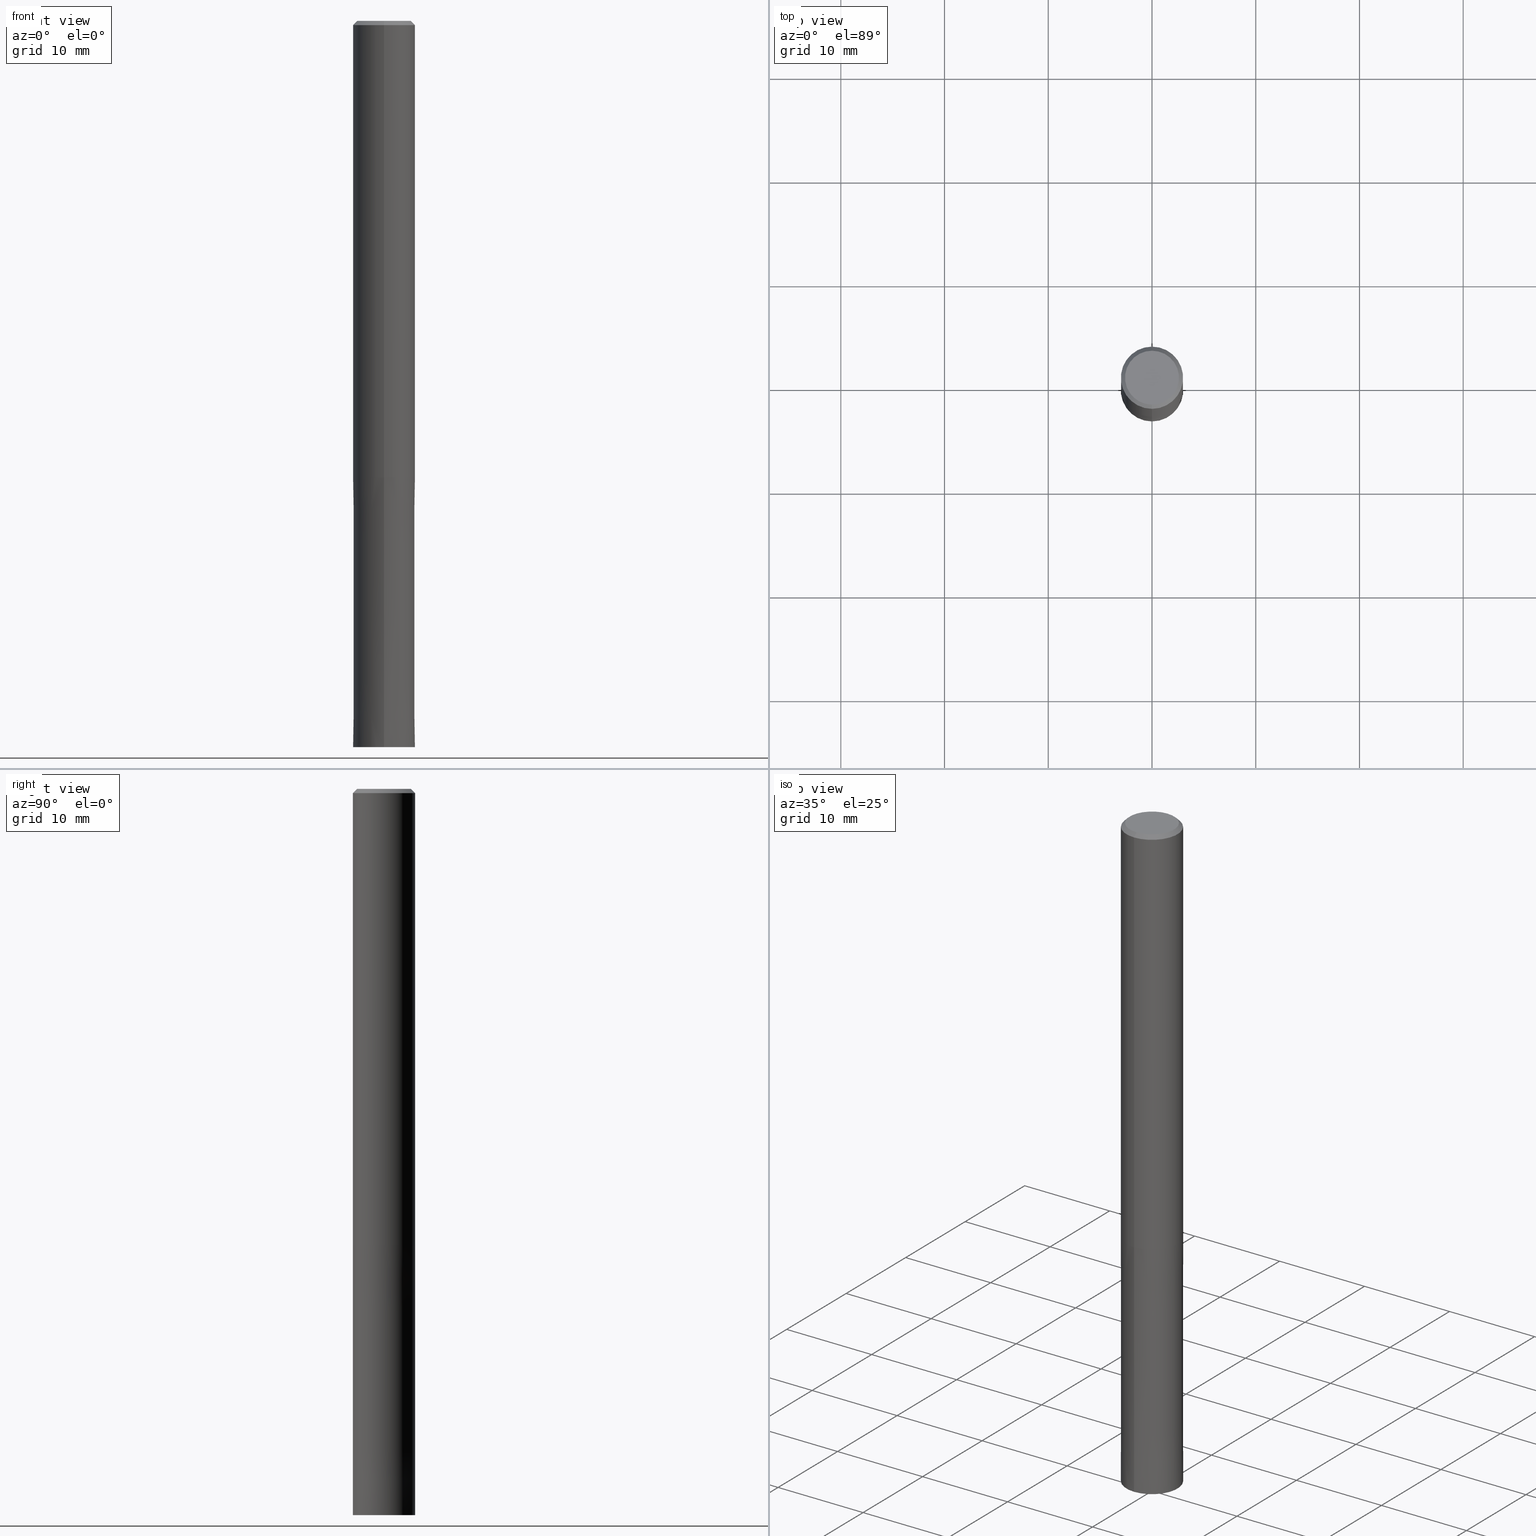
[diagram: canonical four-view strip — front | top / right | iso, engineering-drawing reading convention]
A machine part, canonical four-view strip (front | top / right | iso — engineering-drawing reading convention). The complete STEP part file that produces these views, byte-faithful:
ISO-10303-21;
HEADER;
FILE_DESCRIPTION(('no description'),'unknown implementation level');
FILE_NAME('HMS6060-2600-Huellk.stp','  ',('CIMSOURCE GmbH'),('CADClick - KiM GmbH - www.kimweb.de'),'unknown preprocess','ACIS','unknown authorization');
FILE_SCHEMA(('automotive_design'));
ENDSEC;
DATA;
#1=MECHANICAL_DESIGN_GEOMETRIC_PRESENTATION_REPRESENTATION(' ',(#14,#15,#16,#17,#18,#19,#20,#21,#22,#23,#24,#25,#26,#27,#28,#29,#30,#31,#32,#33,#34,#35,#36,#37,#38,#39,#40,#41,#42,#43,#44,#45,#46,#47,#48,#49,#50,#51,#52,#53,#54,#55,#56,#57,#58,#59,#60,#61,#62,#63,#64,#65,#66,#67,#68,#69,#70,#71,#72,#73,#74,#75,#76),#10);
#2=PRODUCT_DEFINITION_CONTEXT('',#77,'design');
#3=APPLICATION_PROTOCOL_DEFINITION('INTERNATIONAL STANDARD','automotive_design',1994,#77);
#4=PRODUCT_CATEGORY_RELATIONSHIP('NONE','NONE',#78,#79);
#5=SHAPE_DEFINITION_REPRESENTATION(#80,#81);
#6=PRODUCT_DEFINITION_CONTEXT('',#82,'design');
#7=APPLICATION_PROTOCOL_DEFINITION('INTERNATIONAL STANDARD','automotive_design',1994,#82);
#8=PRODUCT_CATEGORY_RELATIONSHIP('NONE','NONE',#83,#84);
#9=SHAPE_DEFINITION_REPRESENTATION(#85,#86);
#10= (GEOMETRIC_REPRESENTATION_CONTEXT(3)GLOBAL_UNCERTAINTY_ASSIGNED_CONTEXT((#89))GLOBAL_UNIT_ASSIGNED_CONTEXT((#91,#92,#93))REPRESENTATION_CONTEXT('NONE','WORKSPACE'));
#14=STYLED_ITEM('',(#95),#96);
#15=STYLED_ITEM('',(#97),#98);
#16=STYLED_ITEM('',(#99),#100);
#17=STYLED_ITEM('',(#101),#102);
#18=STYLED_ITEM('',(#103),#104);
#19=STYLED_ITEM('',(#105),#106);
#20=STYLED_ITEM('',(#107),#108);
#21=STYLED_ITEM('',(#109),#110);
#22=STYLED_ITEM('',(#111),#112);
#23=STYLED_ITEM('',(#113),#114);
#24=STYLED_ITEM('',(#115),#116);
#25=STYLED_ITEM('',(#117),#118);
#26=STYLED_ITEM('',(#119),#120);
#27=STYLED_ITEM('',(#121),#122);
#28=STYLED_ITEM('',(#123),#124);
#29=STYLED_ITEM('',(#125),#126);
#30=STYLED_ITEM('',(#127),#128);
#31=STYLED_ITEM('',(#129),#130);
#32=STYLED_ITEM('',(#131),#132);
#33=STYLED_ITEM('',(#133),#134);
#34=STYLED_ITEM('',(#135),#136);
#35=STYLED_ITEM('',(#137),#138);
#36=STYLED_ITEM('',(#139),#140);
#37=STYLED_ITEM('',(#141),#142);
#38=STYLED_ITEM('',(#143),#144);
#39=STYLED_ITEM('',(#145),#146);
#40=STYLED_ITEM('',(#147),#148);
#41=STYLED_ITEM('',(#149),#150);
#42=STYLED_ITEM('',(#151),#152);
#43=STYLED_ITEM('',(#153),#154);
#44=STYLED_ITEM('',(#155),#156);
#45=STYLED_ITEM('',(#157),#158);
#46=STYLED_ITEM('',(#159),#160);
#47=STYLED_ITEM('',(#161),#162);
#48=STYLED_ITEM('',(#163),#164);
#49=STYLED_ITEM('',(#165),#166);
#50=STYLED_ITEM('',(#167),#168);
#51=STYLED_ITEM('',(#169),#170);
#52=STYLED_ITEM('',(#171),#172);
#53=STYLED_ITEM('',(#173),#174);
#54=STYLED_ITEM('',(#175),#176);
#55=STYLED_ITEM('',(#177),#178);
#56=STYLED_ITEM('',(#179),#180);
#57=STYLED_ITEM('',(#181),#182);
#58=STYLED_ITEM('',(#183),#184);
#59=STYLED_ITEM('',(#185),#186);
#60=STYLED_ITEM('',(#187),#188);
#61=STYLED_ITEM('',(#189),#190);
#62=STYLED_ITEM('',(#191),#192);
#63=STYLED_ITEM('',(#193),#194);
#64=STYLED_ITEM('',(#195),#196);
#65=STYLED_ITEM('',(#197),#198);
#66=STYLED_ITEM('',(#199),#200);
#67=STYLED_ITEM('',(#201),#202);
#68=STYLED_ITEM('',(#203),#204);
#69=STYLED_ITEM('',(#205),#206);
#70=STYLED_ITEM('',(#207),#208);
#71=STYLED_ITEM('',(#209),#210);
#72=STYLED_ITEM('',(#211),#212);
#73=STYLED_ITEM('',(#213),#214);
#74=STYLED_ITEM('',(#215),#216);
#75=STYLED_ITEM('',(#217),#218);
#76=STYLED_ITEM('',(#219),#220);
#77=APPLICATION_CONTEXT(' ');
#78=PRODUCT_CATEGORY('part','NONE');
#79=PRODUCT_RELATED_PRODUCT_CATEGORY('detail',' ',(#221));
#80=PRODUCT_DEFINITION_SHAPE('NONE','NONE',#222);
#81=ADVANCED_BREP_SHAPE_REPRESENTATION('1',(#170,#223),#10);
#82=APPLICATION_CONTEXT(' ');
#83=PRODUCT_CATEGORY('part','NONE');
#84=PRODUCT_RELATED_PRODUCT_CATEGORY('detail',' ',(#224));
#85=PRODUCT_DEFINITION_SHAPE('NONE','NONE',#225);
#86=ADVANCED_BREP_SHAPE_REPRESENTATION('2',(#218,#226),#10);
#89=UNCERTAINTY_MEASURE_WITH_UNIT(LENGTH_MEASURE(1.0E-006),#91,'','');
#91= (CONVERSION_BASED_UNIT('MILLIMETRE',#229)LENGTH_UNIT()NAMED_UNIT(#232));
#92= (NAMED_UNIT(#234)PLANE_ANGLE_UNIT()SI_UNIT($,.RADIAN.));
#93= (NAMED_UNIT(#234)SOLID_ANGLE_UNIT()SI_UNIT($,.STERADIAN.));
#95=PRESENTATION_STYLE_ASSIGNMENT((#240));
#96=VERTEX_POINT('',#241);
#97=PRESENTATION_STYLE_ASSIGNMENT((#242));
#98=ADVANCED_FACE('',(#243),#244,.T.);
#99=PRESENTATION_STYLE_ASSIGNMENT((#245));
#100=VERTEX_POINT('',#246);
#101=PRESENTATION_STYLE_ASSIGNMENT((#247));
#102=ADVANCED_FACE('',(#248),#249,.T.);
#103=PRESENTATION_STYLE_ASSIGNMENT((#250));
#104=VERTEX_POINT('',#251);
#105=PRESENTATION_STYLE_ASSIGNMENT((#252));
#106=VERTEX_POINT('',#253);
#107=PRESENTATION_STYLE_ASSIGNMENT((#254));
#108=ADVANCED_FACE('',(#255,#256),#257,.T.);
#109=PRESENTATION_STYLE_ASSIGNMENT((#258));
#110=VERTEX_POINT('',#259);
#111=PRESENTATION_STYLE_ASSIGNMENT((#260));
#112=EDGE_CURVE('',#104,#206,#261,.T.);
#113=PRESENTATION_STYLE_ASSIGNMENT((#262));
#114=VERTEX_POINT('',#263);
#115=PRESENTATION_STYLE_ASSIGNMENT((#264));
#116=EDGE_CURVE('',#210,#110,#265,.T.);
#117=PRESENTATION_STYLE_ASSIGNMENT((#266));
#118=EDGE_CURVE('',#206,#192,#267,.T.);
#119=PRESENTATION_STYLE_ASSIGNMENT((#268));
#120=EDGE_CURVE('',#106,#186,#269,.T.);
#121=PRESENTATION_STYLE_ASSIGNMENT((#270));
#122=VERTEX_POINT('',#271);
#123=PRESENTATION_STYLE_ASSIGNMENT((#272));
#124=EDGE_CURVE('',#164,#130,#273,.T.);
#125=PRESENTATION_STYLE_ASSIGNMENT((#274));
#126=EDGE_CURVE('',#196,#178,#275,.T.);
#127=PRESENTATION_STYLE_ASSIGNMENT((#276));
#128=ADVANCED_FACE('',(#277),#278,.T.);
#129=PRESENTATION_STYLE_ASSIGNMENT((#279));
#130=VERTEX_POINT('',#280);
#131=PRESENTATION_STYLE_ASSIGNMENT((#281));
#132=EDGE_CURVE('',#184,#198,#282,.T.);
#133=PRESENTATION_STYLE_ASSIGNMENT((#283));
#134=EDGE_CURVE('',#122,#180,#284,.T.);
#135=PRESENTATION_STYLE_ASSIGNMENT((#285));
#136=ADVANCED_FACE('',(#286,#287),#288,.T.);
#137=PRESENTATION_STYLE_ASSIGNMENT((#289));
#138=EDGE_CURVE('',#192,#206,#290,.T.);
#139=PRESENTATION_STYLE_ASSIGNMENT((#291));
#140=EDGE_CURVE('',#100,#198,#292,.T.);
#141=PRESENTATION_STYLE_ASSIGNMENT((#293));
#142=ADVANCED_FACE('',(#294),#295,.F.);
#143=PRESENTATION_STYLE_ASSIGNMENT((#296));
#144=ADVANCED_FACE('',(#297,#298),#299,.T.);
#145=PRESENTATION_STYLE_ASSIGNMENT((#300));
#146=EDGE_CURVE('',#122,#130,#301,.T.);
#147=PRESENTATION_STYLE_ASSIGNMENT((#302));
#148=EDGE_CURVE('',#114,#104,#303,.T.);
#149=PRESENTATION_STYLE_ASSIGNMENT((#304));
#150=EDGE_CURVE('',#110,#210,#305,.T.);
#151=PRESENTATION_STYLE_ASSIGNMENT((#306));
#152=EDGE_CURVE('',#106,#210,#307,.T.);
#153=PRESENTATION_STYLE_ASSIGNMENT((#308));
#154=EDGE_CURVE('',#186,#106,#309,.T.);
#155=PRESENTATION_STYLE_ASSIGNMENT((#310));
#156=EDGE_CURVE('',#184,#96,#311,.T.);
#157=PRESENTATION_STYLE_ASSIGNMENT((#312));
#158=ADVANCED_FACE('',(#313),#314,.T.);
#159=PRESENTATION_STYLE_ASSIGNMENT((#315));
#160=EDGE_CURVE('',#178,#114,#316,.T.);
#161=PRESENTATION_STYLE_ASSIGNMENT((#317));
#162=EDGE_CURVE('',#196,#104,#318,.T.);
#163=PRESENTATION_STYLE_ASSIGNMENT((#319));
#164=VERTEX_POINT('',#320);
#165=PRESENTATION_STYLE_ASSIGNMENT((#321));
#166=EDGE_CURVE('',#96,#100,#322,.T.);
#167=PRESENTATION_STYLE_ASSIGNMENT((#323));
#168=ADVANCED_FACE('',(#324),#325,.T.);
#169=PRESENTATION_STYLE_ASSIGNMENT((#326));
#170=MANIFOLD_SOLID_BREP('1',#327);
#171=PRESENTATION_STYLE_ASSIGNMENT((#328));
#172=ADVANCED_FACE('',(#329),#330,.T.);
#173=PRESENTATION_STYLE_ASSIGNMENT((#331));
#174=EDGE_CURVE('',#164,#180,#332,.T.);
#175=PRESENTATION_STYLE_ASSIGNMENT((#333));
#176=EDGE_CURVE('',#180,#122,#334,.T.);
#177=PRESENTATION_STYLE_ASSIGNMENT((#335));
#178=VERTEX_POINT('',#336);
#179=PRESENTATION_STYLE_ASSIGNMENT((#337));
#180=VERTEX_POINT('',#338);
#181=PRESENTATION_STYLE_ASSIGNMENT((#339));
#182=EDGE_CURVE('',#100,#96,#340,.T.);
#183=PRESENTATION_STYLE_ASSIGNMENT((#341));
#184=VERTEX_POINT('',#342);
#185=PRESENTATION_STYLE_ASSIGNMENT((#343));
#186=VERTEX_POINT('',#344);
#187=PRESENTATION_STYLE_ASSIGNMENT((#345));
#188=ADVANCED_FACE('',(#346),#347,.T.);
#189=PRESENTATION_STYLE_ASSIGNMENT((#348));
#190=EDGE_CURVE('',#114,#178,#349,.T.);
#191=PRESENTATION_STYLE_ASSIGNMENT((#350));
#192=VERTEX_POINT('',#351);
#193=PRESENTATION_STYLE_ASSIGNMENT((#352));
#194=ADVANCED_FACE('',(#353),#354,.T.);
#195=PRESENTATION_STYLE_ASSIGNMENT((#355));
#196=VERTEX_POINT('',#356);
#197=PRESENTATION_STYLE_ASSIGNMENT((#357));
#198=VERTEX_POINT('',#358);
#199=PRESENTATION_STYLE_ASSIGNMENT((#359));
#200=EDGE_CURVE('',#198,#184,#360,.T.);
#201=PRESENTATION_STYLE_ASSIGNMENT((#361));
#202=EDGE_CURVE('',#130,#164,#362,.T.);
#203=PRESENTATION_STYLE_ASSIGNMENT((#363));
#204=EDGE_CURVE('',#104,#196,#364,.T.);
#205=PRESENTATION_STYLE_ASSIGNMENT((#365));
#206=VERTEX_POINT('',#366);
#207=PRESENTATION_STYLE_ASSIGNMENT((#367));
#208=EDGE_CURVE('',#192,#196,#368,.T.);
#209=PRESENTATION_STYLE_ASSIGNMENT((#369));
#210=VERTEX_POINT('',#370);
#211=PRESENTATION_STYLE_ASSIGNMENT((#371));
#212=ADVANCED_FACE('',(#372),#373,.F.);
#213=PRESENTATION_STYLE_ASSIGNMENT((#374));
#214=EDGE_CURVE('',#110,#186,#375,.T.);
#215=PRESENTATION_STYLE_ASSIGNMENT((#376));
#216=ADVANCED_FACE('',(#377),#378,.T.);
#217=PRESENTATION_STYLE_ASSIGNMENT((#379));
#218=MANIFOLD_SOLID_BREP('2',#380);
#219=PRESENTATION_STYLE_ASSIGNMENT((#381));
#220=ADVANCED_FACE('',(#382),#383,.T.);
#221=PRODUCT('1','1','PART-1-DESC',(#384));
#222=PRODUCT_DEFINITION('NONE','NONE',#385,#2);
#223=AXIS2_PLACEMENT_3D('',#386,#387,#388);
#224=PRODUCT('2','2','PART-2-DESC',(#389));
#225=PRODUCT_DEFINITION('NONE','NONE',#390,#6);
#226=AXIS2_PLACEMENT_3D('',#391,#392,#393);
#229=LENGTH_MEASURE_WITH_UNIT(LENGTH_MEASURE(1.0),#394);
#232=DIMENSIONAL_EXPONENTS(1.0,0.0,0.0,0.0,0.0,0.0,0.0);
#234=DIMENSIONAL_EXPONENTS(0.0,0.0,0.0,0.0,0.0,0.0,0.0);
#240=POINT_STYLE(' ',#395,POSITIVE_LENGTH_MEASURE(1.0E-006),#396);
#241=CARTESIAN_POINT('',(1.65321857766021E-016,-1.35,-44.0));
#242=SURFACE_STYLE_USAGE(.BOTH.,#397);
#243=FACE_OUTER_BOUND('',#398,.T.);
#244=CONICAL_SURFACE('',#399,2.99995,3.846153846143E-006);
#245=POINT_STYLE(' ',#400,POSITIVE_LENGTH_MEASURE(1.0E-006),#401);
#246=CARTESIAN_POINT('',(0.0,1.35,-44.0));
#247=SURFACE_STYLE_USAGE(.BOTH.,#402);
#248=FACE_OUTER_BOUND('',#403,.T.);
#249=CYLINDRICAL_SURFACE('',#404,1.35);
#250=POINT_STYLE(' ',#405,POSITIVE_LENGTH_MEASURE(1.0E-006),#406);
#251=CARTESIAN_POINT('',(0.0,3.0,-0.399999999999999));
#252=POINT_STYLE(' ',#407,POSITIVE_LENGTH_MEASURE(1.0E-006),#408);
#253=CARTESIAN_POINT('',(1.65321857766021E-016,-1.35,-69.9));
#254=SURFACE_STYLE_USAGE(.BOTH.,#409);
#255=FACE_OUTER_BOUND('',#410,.T.);
#256=FACE_BOUND('',#411,.T.);
#257=PLANE('',#412);
#258=POINT_STYLE(' ',#413,POSITIVE_LENGTH_MEASURE(1.0E-006),#414);
#259=CARTESIAN_POINT('',(0.0,1.35,-44.0));
#260=CURVE_STYLE('',#415,POSITIVE_LENGTH_MEASURE(1.0E-006),#416);
#261=LINE('',#417,#418);
#262=POINT_STYLE(' ',#419,POSITIVE_LENGTH_MEASURE(1.0E-006),#420);
#263=CARTESIAN_POINT('',(0.0,2.6,0.0));
#264=CURVE_STYLE('',#421,POSITIVE_LENGTH_MEASURE(1.0E-006),#422);
#265=CIRCLE('',#423,1.35);
#266=CURVE_STYLE('',#424,POSITIVE_LENGTH_MEASURE(1.0E-006),#425);
#267=CIRCLE('',#426,3.0);
#268=CURVE_STYLE('',#427,POSITIVE_LENGTH_MEASURE(1.0E-006),#428);
#269=CIRCLE('',#429,1.35);
#270=POINT_STYLE(' ',#430,POSITIVE_LENGTH_MEASURE(1.0E-006),#431);
#271=CARTESIAN_POINT('',(3.67381906146713E-016,-3.0,-70.0));
#272=CURVE_STYLE('',#432,POSITIVE_LENGTH_MEASURE(1.0E-006),#433);
#273=CIRCLE('',#434,2.9999);
#274=CURVE_STYLE('',#435,POSITIVE_LENGTH_MEASURE(1.0E-006),#436);
#275=LINE('',#437,#438);
#276=SURFACE_STYLE_USAGE(.BOTH.,#439);
#277=FACE_OUTER_BOUND('',#440,.T.);
#278=CONICAL_SURFACE('',#441,2.8,0.78539816339745);
#279=POINT_STYLE(' ',#442,POSITIVE_LENGTH_MEASURE(1.0E-006),#443);
#280=CARTESIAN_POINT('',(3.67369660083175E-016,-2.9999,-44.0));
#281=CURVE_STYLE('',#444,POSITIVE_LENGTH_MEASURE(1.0E-006),#445);
#282=CIRCLE('',#446,1.35);
#283=CURVE_STYLE('',#447,POSITIVE_LENGTH_MEASURE(1.0E-006),#448);
#284=CIRCLE('',#449,3.0);
#285=SURFACE_STYLE_USAGE(.BOTH.,#450);
#286=FACE_OUTER_BOUND('',#451,.T.);
#287=FACE_BOUND('',#452,.T.);
#288=PLANE('',#453);
#289=CURVE_STYLE('',#454,POSITIVE_LENGTH_MEASURE(1.0E-006),#455);
#290=CIRCLE('',#456,3.0);
#291=CURVE_STYLE('',#457,POSITIVE_LENGTH_MEASURE(1.0E-006),#458);
#292=LINE('',#459,#460);
#293=SURFACE_STYLE_USAGE(.BOTH.,#461);
#294=FACE_OUTER_BOUND('',#462,.T.);
#295=CYLINDRICAL_SURFACE('',#463,1.35);
#296=SURFACE_STYLE_USAGE(.BOTH.,#464);
#297=FACE_OUTER_BOUND('',#465,.T.);
#298=FACE_BOUND('',#466,.T.);
#299=PLANE('',#467);
#300=CURVE_STYLE('',#468,POSITIVE_LENGTH_MEASURE(1.0E-006),#469);
#301=LINE('',#470,#471);
#302=CURVE_STYLE('',#472,POSITIVE_LENGTH_MEASURE(1.0E-006),#473);
#303=LINE('',#474,#475);
#304=CURVE_STYLE('',#476,POSITIVE_LENGTH_MEASURE(1.0E-006),#477);
#305=CIRCLE('',#478,1.35);
#306=CURVE_STYLE('',#479,POSITIVE_LENGTH_MEASURE(1.0E-006),#480);
#307=LINE('',#481,#482);
#308=CURVE_STYLE('',#483,POSITIVE_LENGTH_MEASURE(1.0E-006),#484);
#309=CIRCLE('',#485,1.35);
#310=CURVE_STYLE('',#486,POSITIVE_LENGTH_MEASURE(1.0E-006),#487);
#311=LINE('',#488,#489);
#312=SURFACE_STYLE_USAGE(.BOTH.,#490);
#313=FACE_OUTER_BOUND('',#491,.T.);
#314=PLANE('',#492);
#315=CURVE_STYLE('',#493,POSITIVE_LENGTH_MEASURE(1.0E-006),#494);
#316=CIRCLE('',#495,2.6);
#317=CURVE_STYLE('',#496,POSITIVE_LENGTH_MEASURE(1.0E-006),#497);
#318=CIRCLE('',#498,3.0);
#319=POINT_STYLE(' ',#499,POSITIVE_LENGTH_MEASURE(1.0E-006),#500);
#320=CARTESIAN_POINT('',(0.0,2.9999,-44.0));
#321=CURVE_STYLE('',#501,POSITIVE_LENGTH_MEASURE(1.0E-006),#502);
#322=CIRCLE('',#503,1.35);
#323=SURFACE_STYLE_USAGE(.BOTH.,#504);
#324=FACE_OUTER_BOUND('',#505,.T.);
#325=CYLINDRICAL_SURFACE('',#506,1.35);
#326=SURFACE_STYLE_USAGE(.BOTH.,#507);
#327=CLOSED_SHELL('',(#102,#188,#216,#136,#158,#128,#172,#168,#194));
#328=SURFACE_STYLE_USAGE(.BOTH.,#508);
#329=FACE_OUTER_BOUND('',#509,.T.);
#330=CYLINDRICAL_SURFACE('',#510,3.0);
#331=CURVE_STYLE('',#511,POSITIVE_LENGTH_MEASURE(1.0E-006),#512);
#332=LINE('',#513,#514);
#333=CURVE_STYLE('',#515,POSITIVE_LENGTH_MEASURE(1.0E-006),#516);
#334=CIRCLE('',#517,3.0);
#335=POINT_STYLE(' ',#518,POSITIVE_LENGTH_MEASURE(1.0E-006),#519);
#336=CARTESIAN_POINT('',(3.18397651993818E-016,-2.6,0.0));
#337=POINT_STYLE(' ',#520,POSITIVE_LENGTH_MEASURE(1.0E-006),#521);
#338=CARTESIAN_POINT('',(0.0,3.0,-70.0));
#339=CURVE_STYLE('',#522,POSITIVE_LENGTH_MEASURE(1.0E-006),#523);
#340=CIRCLE('',#524,1.35);
#341=POINT_STYLE(' ',#525,POSITIVE_LENGTH_MEASURE(1.0E-006),#526);
#342=CARTESIAN_POINT('',(1.65321857766021E-016,-1.35,-70.0));
#343=POINT_STYLE(' ',#527,POSITIVE_LENGTH_MEASURE(1.0E-006),#528);
#344=CARTESIAN_POINT('',(0.0,1.35,-69.9));
#345=SURFACE_STYLE_USAGE(.BOTH.,#529);
#346=FACE_OUTER_BOUND('',#530,.T.);
#347=CYLINDRICAL_SURFACE('',#531,3.0);
#348=CURVE_STYLE('',#532,POSITIVE_LENGTH_MEASURE(1.0E-006),#533);
#349=CIRCLE('',#534,2.6);
#350=POINT_STYLE(' ',#535,POSITIVE_LENGTH_MEASURE(1.0E-006),#536);
#351=CARTESIAN_POINT('',(3.67381906146713E-016,-3.0,-44.0));
#352=SURFACE_STYLE_USAGE(.BOTH.,#537);
#353=FACE_OUTER_BOUND('',#538,.T.);
#354=PLANE('',#539);
#355=POINT_STYLE(' ',#540,POSITIVE_LENGTH_MEASURE(1.0E-006),#541);
#356=CARTESIAN_POINT('',(3.67381906146713E-016,-3.0,-0.399999999999999));
#357=POINT_STYLE(' ',#542,POSITIVE_LENGTH_MEASURE(1.0E-006),#543);
#358=CARTESIAN_POINT('',(0.0,1.35,-70.0));
#359=CURVE_STYLE('',#544,POSITIVE_LENGTH_MEASURE(1.0E-006),#545);
#360=CIRCLE('',#546,1.35);
#361=CURVE_STYLE('',#547,POSITIVE_LENGTH_MEASURE(1.0E-006),#548);
#362=CIRCLE('',#549,2.9999);
#363=CURVE_STYLE('',#550,POSITIVE_LENGTH_MEASURE(1.0E-006),#551);
#364=CIRCLE('',#552,3.0);
#365=POINT_STYLE(' ',#553,POSITIVE_LENGTH_MEASURE(1.0E-006),#554);
#366=CARTESIAN_POINT('',(0.0,3.0,-44.0));
#367=CURVE_STYLE('',#555,POSITIVE_LENGTH_MEASURE(1.0E-006),#556);
#368=LINE('',#557,#558);
#369=POINT_STYLE(' ',#559,POSITIVE_LENGTH_MEASURE(1.0E-006),#560);
#370=CARTESIAN_POINT('',(1.65321857766021E-016,-1.35,-44.0));
#371=SURFACE_STYLE_USAGE(.BOTH.,#561);
#372=FACE_OUTER_BOUND('',#562,.T.);
#373=CYLINDRICAL_SURFACE('',#563,1.35);
#374=CURVE_STYLE('',#564,POSITIVE_LENGTH_MEASURE(1.0E-006),#565);
#375=LINE('',#566,#567);
#376=SURFACE_STYLE_USAGE(.BOTH.,#568);
#377=FACE_OUTER_BOUND('',#569,.T.);
#378=CONICAL_SURFACE('',#570,2.8,0.78539816339745);
#379=SURFACE_STYLE_USAGE(.BOTH.,#571);
#380=CLOSED_SHELL('',(#212,#98,#108,#220,#144,#142));
#381=SURFACE_STYLE_USAGE(.BOTH.,#572);
#382=FACE_OUTER_BOUND('',#573,.T.);
#383=CONICAL_SURFACE('',#574,2.99995,3.846153846143E-006);
#384=PRODUCT_CONTEXT('',#77,'mechanical');
#385=PRODUCT_DEFINITION_FORMATION_WITH_SPECIFIED_SOURCE(' ','NONE',#221,.NOT_KNOWN.);
#386=CARTESIAN_POINT('',(0.0,0.0,0.0));
#387=DIRECTION('',(0.0,0.0,1.0));
#388=DIRECTION('',(1.0,0.0,0.0));
#389=PRODUCT_CONTEXT('',#82,'mechanical');
#390=PRODUCT_DEFINITION_FORMATION_WITH_SPECIFIED_SOURCE(' ','NONE',#224,.NOT_KNOWN.);
#391=CARTESIAN_POINT('',(0.0,0.0,0.0));
#392=DIRECTION('',(0.0,0.0,1.0));
#393=DIRECTION('',(1.0,0.0,0.0));
#394= (NAMED_UNIT(#232)LENGTH_UNIT()SI_UNIT(.MILLI.,.METRE.));
#395=PRE_DEFINED_MARKER('');
#396=COLOUR_RGB('',0.800000011920929,0.800000011920929,0.800000011920929);
#397=SURFACE_SIDE_STYLE('',(#576));
#398=EDGE_LOOP('',(#577,#578,#579,#580));
#399=AXIS2_PLACEMENT_3D('',#581,#582,#583);
#400=PRE_DEFINED_MARKER('');
#401=COLOUR_RGB('',0.800000011920929,0.800000011920929,0.800000011920929);
#402=SURFACE_SIDE_STYLE('',(#584));
#403=EDGE_LOOP('',(#585,#586,#587,#588));
#404=AXIS2_PLACEMENT_3D('',#589,#590,#591);
#405=PRE_DEFINED_MARKER('');
#406=COLOUR_RGB('',0.498039215803146,0.498039215803146,0.498039215803146);
#407=PRE_DEFINED_MARKER('');
#408=COLOUR_RGB('',0.498039215803146,0.498039215803146,0.498039215803146);
#409=SURFACE_SIDE_STYLE('',(#592));
#410=EDGE_LOOP('',(#593,#594));
#411=EDGE_LOOP('',(#595,#596));
#412=AXIS2_PLACEMENT_3D('',#597,#598,#599);
#413=PRE_DEFINED_MARKER('');
#414=COLOUR_RGB('',0.498039215803146,0.498039215803146,0.498039215803146);
#415=DRAUGHTING_PRE_DEFINED_CURVE_FONT('continuous');
#416=COLOUR_RGB('',0.498039215803146,0.498039215803146,0.498039215803146);
#417=CARTESIAN_POINT('',(-3.67381906146713E-016,3.0,-22.2));
#418=VECTOR('',#600,1.0);
#419=PRE_DEFINED_MARKER('');
#420=COLOUR_RGB('',0.498039215803146,0.498039215803146,0.498039215803146);
#421=DRAUGHTING_PRE_DEFINED_CURVE_FONT('continuous');
#422=COLOUR_RGB('',0.498039215803146,0.498039215803146,0.498039215803146);
#423=AXIS2_PLACEMENT_3D('',#601,#602,#603);
#424=DRAUGHTING_PRE_DEFINED_CURVE_FONT('continuous');
#425=COLOUR_RGB('',0.498039215803146,0.498039215803146,0.498039215803146);
#426=AXIS2_PLACEMENT_3D('',#604,#605,#606);
#427=DRAUGHTING_PRE_DEFINED_CURVE_FONT('continuous');
#428=COLOUR_RGB('',0.498039215803146,0.498039215803146,0.498039215803146);
#429=AXIS2_PLACEMENT_3D('',#607,#608,#609);
#430=PRE_DEFINED_MARKER('');
#431=COLOUR_RGB('',0.800000011920929,0.800000011920929,0.800000011920929);
#432=DRAUGHTING_PRE_DEFINED_CURVE_FONT('continuous');
#433=COLOUR_RGB('',0.800000011920929,0.800000011920929,0.800000011920929);
#434=AXIS2_PLACEMENT_3D('',#610,#611,#612);
#435=DRAUGHTING_PRE_DEFINED_CURVE_FONT('continuous');
#436=COLOUR_RGB('',0.498039215803146,0.498039215803146,0.498039215803146);
#437=CARTESIAN_POINT('',(3.42889779070266E-016,-2.8,-0.200000000000003));
#438=VECTOR('',#613,1.0);
#439=SURFACE_SIDE_STYLE('',(#614));
#440=EDGE_LOOP('',(#615,#616,#617,#618));
#441=AXIS2_PLACEMENT_3D('',#619,#620,#621);
#442=PRE_DEFINED_MARKER('');
#443=COLOUR_RGB('',0.800000011920929,0.800000011920929,0.800000011920929);
#444=DRAUGHTING_PRE_DEFINED_CURVE_FONT('continuous');
#445=COLOUR_RGB('',0.800000011920929,0.800000011920929,0.800000011920929);
#446=AXIS2_PLACEMENT_3D('',#622,#623,#624);
#447=DRAUGHTING_PRE_DEFINED_CURVE_FONT('continuous');
#448=COLOUR_RGB('',0.800000011920929,0.800000011920929,0.800000011920929);
#449=AXIS2_PLACEMENT_3D('',#625,#626,#627);
#450=SURFACE_SIDE_STYLE('',(#628));
#451=EDGE_LOOP('',(#629,#630));
#452=EDGE_LOOP('',(#631,#632));
#453=AXIS2_PLACEMENT_3D('',#633,#634,#635);
#454=DRAUGHTING_PRE_DEFINED_CURVE_FONT('continuous');
#455=COLOUR_RGB('',0.498039215803146,0.498039215803146,0.498039215803146);
#456=AXIS2_PLACEMENT_3D('',#636,#637,#638);
#457=DRAUGHTING_PRE_DEFINED_CURVE_FONT('continuous');
#458=COLOUR_RGB('',0.800000011920929,0.800000011920929,0.800000011920929);
#459=CARTESIAN_POINT('',(-1.65321857766021E-016,1.35,-57.0));
#460=VECTOR('',#639,1.0);
#461=SURFACE_SIDE_STYLE('',(#640));
#462=EDGE_LOOP('',(#641,#642,#643,#644));
#463=AXIS2_PLACEMENT_3D('',#645,#646,#647);
#464=SURFACE_SIDE_STYLE('',(#648));
#465=EDGE_LOOP('',(#649,#650));
#466=EDGE_LOOP('',(#651,#652));
#467=AXIS2_PLACEMENT_3D('',#653,#654,#655);
#468=DRAUGHTING_PRE_DEFINED_CURVE_FONT('continuous');
#469=COLOUR_RGB('',0.800000011920929,0.800000011920929,0.800000011920929);
#470=CARTESIAN_POINT('',(3.67375783114944E-016,-2.99995,-57.0));
#471=VECTOR('',#656,1.0);
#472=DRAUGHTING_PRE_DEFINED_CURVE_FONT('continuous');
#473=COLOUR_RGB('',0.498039215803146,0.498039215803146,0.498039215803146);
#474=CARTESIAN_POINT('',(-3.42889779070266E-016,2.8,-0.200000000000003));
#475=VECTOR('',#657,1.0);
#476=DRAUGHTING_PRE_DEFINED_CURVE_FONT('continuous');
#477=COLOUR_RGB('',0.498039215803146,0.498039215803146,0.498039215803146);
#478=AXIS2_PLACEMENT_3D('',#658,#659,#660);
#479=DRAUGHTING_PRE_DEFINED_CURVE_FONT('continuous');
#480=COLOUR_RGB('',0.498039215803146,0.498039215803146,0.498039215803146);
#481=CARTESIAN_POINT('',(1.65321857766021E-016,-1.35,-56.95));
#482=VECTOR('',#661,1.0);
#483=DRAUGHTING_PRE_DEFINED_CURVE_FONT('continuous');
#484=COLOUR_RGB('',0.498039215803146,0.498039215803146,0.498039215803146);
#485=AXIS2_PLACEMENT_3D('',#662,#663,#664);
#486=DRAUGHTING_PRE_DEFINED_CURVE_FONT('continuous');
#487=COLOUR_RGB('',0.800000011920929,0.800000011920929,0.800000011920929);
#488=CARTESIAN_POINT('',(1.65321857766021E-016,-1.35,-57.0));
#489=VECTOR('',#665,1.0);
#490=SURFACE_SIDE_STYLE('',(#666));
#491=EDGE_LOOP('',(#667,#668));
#492=AXIS2_PLACEMENT_3D('',#669,#670,#671);
#493=DRAUGHTING_PRE_DEFINED_CURVE_FONT('continuous');
#494=COLOUR_RGB('',0.498039215803146,0.498039215803146,0.498039215803146);
#495=AXIS2_PLACEMENT_3D('',#672,#673,#674);
#496=DRAUGHTING_PRE_DEFINED_CURVE_FONT('continuous');
#497=COLOUR_RGB('',0.498039215803146,0.498039215803146,0.498039215803146);
#498=AXIS2_PLACEMENT_3D('',#675,#676,#677);
#499=PRE_DEFINED_MARKER('');
#500=COLOUR_RGB('',0.800000011920929,0.800000011920929,0.800000011920929);
#501=DRAUGHTING_PRE_DEFINED_CURVE_FONT('continuous');
#502=COLOUR_RGB('',0.800000011920929,0.800000011920929,0.800000011920929);
#503=AXIS2_PLACEMENT_3D('',#678,#679,#680);
#504=SURFACE_SIDE_STYLE('',(#681));
#505=EDGE_LOOP('',(#682,#683,#684,#685));
#506=AXIS2_PLACEMENT_3D('',#686,#687,#688);
#507=SURFACE_SIDE_STYLE('',(#689));
#508=SURFACE_SIDE_STYLE('',(#690));
#509=EDGE_LOOP('',(#691,#692,#693,#694));
#510=AXIS2_PLACEMENT_3D('',#695,#696,#697);
#511=DRAUGHTING_PRE_DEFINED_CURVE_FONT('continuous');
#512=COLOUR_RGB('',0.800000011920929,0.800000011920929,0.800000011920929);
#513=CARTESIAN_POINT('',(-3.67375783114944E-016,2.99995,-57.0));
#514=VECTOR('',#698,1.0);
#515=DRAUGHTING_PRE_DEFINED_CURVE_FONT('continuous');
#516=COLOUR_RGB('',0.800000011920929,0.800000011920929,0.800000011920929);
#517=AXIS2_PLACEMENT_3D('',#699,#700,#701);
#518=PRE_DEFINED_MARKER('');
#519=COLOUR_RGB('',0.498039215803146,0.498039215803146,0.498039215803146);
#520=PRE_DEFINED_MARKER('');
#521=COLOUR_RGB('',0.800000011920929,0.800000011920929,0.800000011920929);
#522=DRAUGHTING_PRE_DEFINED_CURVE_FONT('continuous');
#523=COLOUR_RGB('',0.800000011920929,0.800000011920929,0.800000011920929);
#524=AXIS2_PLACEMENT_3D('',#702,#703,#704);
#525=PRE_DEFINED_MARKER('');
#526=COLOUR_RGB('',0.800000011920929,0.800000011920929,0.800000011920929);
#527=PRE_DEFINED_MARKER('');
#528=COLOUR_RGB('',0.498039215803146,0.498039215803146,0.498039215803146);
#529=SURFACE_SIDE_STYLE('',(#705));
#530=EDGE_LOOP('',(#706,#707,#708,#709));
#531=AXIS2_PLACEMENT_3D('',#710,#711,#712);
#532=DRAUGHTING_PRE_DEFINED_CURVE_FONT('continuous');
#533=COLOUR_RGB('',0.498039215803146,0.498039215803146,0.498039215803146);
#534=AXIS2_PLACEMENT_3D('',#713,#714,#715);
#535=PRE_DEFINED_MARKER('');
#536=COLOUR_RGB('',0.498039215803146,0.498039215803146,0.498039215803146);
#537=SURFACE_SIDE_STYLE('',(#716));
#538=EDGE_LOOP('',(#717,#718));
#539=AXIS2_PLACEMENT_3D('',#719,#720,#721);
#540=PRE_DEFINED_MARKER('');
#541=COLOUR_RGB('',0.498039215803146,0.498039215803146,0.498039215803146);
#542=PRE_DEFINED_MARKER('');
#543=COLOUR_RGB('',0.800000011920929,0.800000011920929,0.800000011920929);
#544=DRAUGHTING_PRE_DEFINED_CURVE_FONT('continuous');
#545=COLOUR_RGB('',0.800000011920929,0.800000011920929,0.800000011920929);
#546=AXIS2_PLACEMENT_3D('',#722,#723,#724);
#547=DRAUGHTING_PRE_DEFINED_CURVE_FONT('continuous');
#548=COLOUR_RGB('',0.800000011920929,0.800000011920929,0.800000011920929);
#549=AXIS2_PLACEMENT_3D('',#725,#726,#727);
#550=DRAUGHTING_PRE_DEFINED_CURVE_FONT('continuous');
#551=COLOUR_RGB('',0.498039215803146,0.498039215803146,0.498039215803146);
#552=AXIS2_PLACEMENT_3D('',#728,#729,#730);
#553=PRE_DEFINED_MARKER('');
#554=COLOUR_RGB('',0.498039215803146,0.498039215803146,0.498039215803146);
#555=DRAUGHTING_PRE_DEFINED_CURVE_FONT('continuous');
#556=COLOUR_RGB('',0.498039215803146,0.498039215803146,0.498039215803146);
#557=CARTESIAN_POINT('',(3.67381906146713E-016,-3.0,-22.2));
#558=VECTOR('',#731,1.0);
#559=PRE_DEFINED_MARKER('');
#560=COLOUR_RGB('',0.498039215803146,0.498039215803146,0.498039215803146);
#561=SURFACE_SIDE_STYLE('',(#732));
#562=EDGE_LOOP('',(#733,#734,#735,#736));
#563=AXIS2_PLACEMENT_3D('',#737,#738,#739);
#564=DRAUGHTING_PRE_DEFINED_CURVE_FONT('continuous');
#565=COLOUR_RGB('',0.498039215803146,0.498039215803146,0.498039215803146);
#566=CARTESIAN_POINT('',(-1.65321857766021E-016,1.35,-56.95));
#567=VECTOR('',#740,1.0);
#568=SURFACE_SIDE_STYLE('',(#741));
#569=EDGE_LOOP('',(#742,#743,#744,#745));
#570=AXIS2_PLACEMENT_3D('',#746,#747,#748);
#571=SURFACE_SIDE_STYLE('',(#749));
#572=SURFACE_SIDE_STYLE('',(#750));
#573=EDGE_LOOP('',(#751,#752,#753,#754));
#574=AXIS2_PLACEMENT_3D('',#755,#756,#757);
#576=SURFACE_STYLE_FILL_AREA(#758);
#577=ORIENTED_EDGE('',*,*,#174,.F.);
#578=ORIENTED_EDGE('',*,*,#124,.T.);
#579=ORIENTED_EDGE('',*,*,#146,.F.);
#580=ORIENTED_EDGE('',*,*,#176,.F.);
#581=CARTESIAN_POINT('',(0.0,0.0,-57.0));
#582=DIRECTION('',(0.0,-0.0,-1.0));
#583=DIRECTION('',(0.0,1.0,0.0));
#584=SURFACE_STYLE_FILL_AREA(#759);
#585=ORIENTED_EDGE('',*,*,#214,.F.);
#586=ORIENTED_EDGE('',*,*,#150,.T.);
#587=ORIENTED_EDGE('',*,*,#152,.F.);
#588=ORIENTED_EDGE('',*,*,#154,.F.);
#589=CARTESIAN_POINT('',(0.0,0.0,-56.95));
#590=DIRECTION('',(-0.0,-0.0,1.0));
#591=DIRECTION('',(0.0,1.0,0.0));
#592=SURFACE_STYLE_FILL_AREA(#760);
#593=ORIENTED_EDGE('',*,*,#124,.F.);
#594=ORIENTED_EDGE('',*,*,#202,.F.);
#595=ORIENTED_EDGE('',*,*,#182,.T.);
#596=ORIENTED_EDGE('',*,*,#166,.T.);
#597=CARTESIAN_POINT('',(0.0,2.17495,-44.0));
#598=DIRECTION('',(-0.0,0.0,1.0));
#599=DIRECTION('',(0.0,-1.0,0.0));
#600=DIRECTION('',(0.0,0.0,-1.0));
#601=CARTESIAN_POINT('',(0.0,0.0,-44.0));
#602=DIRECTION('',(0.0,0.0,-1.0));
#603=DIRECTION('',(0.0,1.0,0.0));
#604=CARTESIAN_POINT('',(0.0,0.0,-44.0));
#605=DIRECTION('',(0.0,0.0,-1.0));
#606=DIRECTION('',(0.0,1.0,0.0));
#607=CARTESIAN_POINT('',(0.0,0.0,-69.9));
#608=DIRECTION('',(0.0,0.0,-1.0));
#609=DIRECTION('',(0.0,1.0,0.0));
#610=CARTESIAN_POINT('',(0.0,0.0,-44.0));
#611=DIRECTION('',(0.0,0.0,-1.0));
#612=DIRECTION('',(0.0,1.0,0.0));
#613=DIRECTION('',(-8.65927457071937E-017,0.707106781186549,0.707106781186546));
#614=SURFACE_STYLE_FILL_AREA(#761);
#615=ORIENTED_EDGE('',*,*,#148,.T.);
#616=ORIENTED_EDGE('',*,*,#162,.F.);
#617=ORIENTED_EDGE('',*,*,#126,.T.);
#618=ORIENTED_EDGE('',*,*,#160,.T.);
#619=CARTESIAN_POINT('',(0.0,0.0,-0.200000000000003));
#620=DIRECTION('',(0.0,-0.0,-1.0));
#621=DIRECTION('',(0.0,1.0,0.0));
#622=CARTESIAN_POINT('',(0.0,0.0,-70.0));
#623=DIRECTION('',(0.0,0.0,-1.0));
#624=DIRECTION('',(0.0,1.0,0.0));
#625=CARTESIAN_POINT('',(0.0,0.0,-70.0));
#626=DIRECTION('',(0.0,0.0,-1.0));
#627=DIRECTION('',(0.0,1.0,0.0));
#628=SURFACE_STYLE_FILL_AREA(#762);
#629=ORIENTED_EDGE('',*,*,#118,.T.);
#630=ORIENTED_EDGE('',*,*,#138,.T.);
#631=ORIENTED_EDGE('',*,*,#150,.F.);
#632=ORIENTED_EDGE('',*,*,#116,.F.);
#633=CARTESIAN_POINT('',(0.0,1.5,-44.0));
#634=DIRECTION('',(0.0,0.0,-1.0));
#635=DIRECTION('',(0.0,1.0,0.0));
#636=CARTESIAN_POINT('',(0.0,0.0,-44.0));
#637=DIRECTION('',(0.0,0.0,-1.0));
#638=DIRECTION('',(0.0,1.0,0.0));
#639=DIRECTION('',(0.0,-0.0,-1.0));
#640=SURFACE_STYLE_FILL_AREA(#763);
#641=ORIENTED_EDGE('',*,*,#140,.T.);
#642=ORIENTED_EDGE('',*,*,#200,.T.);
#643=ORIENTED_EDGE('',*,*,#156,.T.);
#644=ORIENTED_EDGE('',*,*,#182,.F.);
#645=CARTESIAN_POINT('',(0.0,0.0,-57.0));
#646=DIRECTION('',(-0.0,-0.0,1.0));
#647=DIRECTION('',(0.0,1.0,0.0));
#648=SURFACE_STYLE_FILL_AREA(#764);
#649=ORIENTED_EDGE('',*,*,#176,.T.);
#650=ORIENTED_EDGE('',*,*,#134,.T.);
#651=ORIENTED_EDGE('',*,*,#200,.F.);
#652=ORIENTED_EDGE('',*,*,#132,.F.);
#653=CARTESIAN_POINT('',(0.0,2.1725,-70.0));
#654=DIRECTION('',(0.0,0.0,-1.0));
#655=DIRECTION('',(0.0,1.0,0.0));
#656=DIRECTION('',(-4.71002443775348E-022,3.84615384613351E-006,0.999999999992604));
#657=DIRECTION('',(-8.65927457071937E-017,0.707106781186549,-0.707106781186546));
#658=CARTESIAN_POINT('',(0.0,0.0,-44.0));
#659=DIRECTION('',(0.0,0.0,-1.0));
#660=DIRECTION('',(0.0,1.0,0.0));
#661=DIRECTION('',(-0.0,-0.0,1.0));
#662=CARTESIAN_POINT('',(0.0,0.0,-69.9));
#663=DIRECTION('',(0.0,0.0,-1.0));
#664=DIRECTION('',(0.0,1.0,0.0));
#665=DIRECTION('',(0.0,-0.0,1.0));
#666=SURFACE_STYLE_FILL_AREA(#765);
#667=ORIENTED_EDGE('',*,*,#190,.F.);
#668=ORIENTED_EDGE('',*,*,#160,.F.);
#669=CARTESIAN_POINT('',(0.0,1.3,0.0));
#670=DIRECTION('',(-0.0,0.0,1.0));
#671=DIRECTION('',(0.0,-1.0,0.0));
#672=CARTESIAN_POINT('',(0.0,0.0,0.0));
#673=DIRECTION('',(0.0,0.0,-1.0));
#674=DIRECTION('',(0.0,1.0,0.0));
#675=CARTESIAN_POINT('',(0.0,0.0,-0.399999999999999));
#676=DIRECTION('',(0.0,0.0,-1.0));
#677=DIRECTION('',(0.0,1.0,0.0));
#678=CARTESIAN_POINT('',(0.0,0.0,-44.0));
#679=DIRECTION('',(0.0,0.0,-1.0));
#680=DIRECTION('',(0.0,1.0,0.0));
#681=SURFACE_STYLE_FILL_AREA(#766);
#682=ORIENTED_EDGE('',*,*,#214,.T.);
#683=ORIENTED_EDGE('',*,*,#120,.F.);
#684=ORIENTED_EDGE('',*,*,#152,.T.);
#685=ORIENTED_EDGE('',*,*,#116,.T.);
#686=CARTESIAN_POINT('',(0.0,0.0,-56.95));
#687=DIRECTION('',(-0.0,-0.0,1.0));
#688=DIRECTION('',(0.0,1.0,0.0));
#689=SURFACE_STYLE_FILL_AREA(#767);
#690=SURFACE_STYLE_FILL_AREA(#768);
#691=ORIENTED_EDGE('',*,*,#112,.T.);
#692=ORIENTED_EDGE('',*,*,#138,.F.);
#693=ORIENTED_EDGE('',*,*,#208,.T.);
#694=ORIENTED_EDGE('',*,*,#162,.T.);
#695=CARTESIAN_POINT('',(0.0,0.0,-22.2));
#696=DIRECTION('',(-0.0,-0.0,1.0));
#697=DIRECTION('',(0.0,1.0,0.0));
#698=DIRECTION('',(-4.71002443775348E-022,3.84615384613351E-006,-0.999999999992604));
#699=CARTESIAN_POINT('',(0.0,0.0,-70.0));
#700=DIRECTION('',(0.0,0.0,-1.0));
#701=DIRECTION('',(0.0,1.0,0.0));
#702=CARTESIAN_POINT('',(0.0,0.0,-44.0));
#703=DIRECTION('',(0.0,0.0,-1.0));
#704=DIRECTION('',(0.0,1.0,0.0));
#705=SURFACE_STYLE_FILL_AREA(#769);
#706=ORIENTED_EDGE('',*,*,#112,.F.);
#707=ORIENTED_EDGE('',*,*,#204,.T.);
#708=ORIENTED_EDGE('',*,*,#208,.F.);
#709=ORIENTED_EDGE('',*,*,#118,.F.);
#710=CARTESIAN_POINT('',(0.0,0.0,-22.2));
#711=DIRECTION('',(-0.0,-0.0,1.0));
#712=DIRECTION('',(0.0,1.0,0.0));
#713=CARTESIAN_POINT('',(0.0,0.0,0.0));
#714=DIRECTION('',(0.0,0.0,-1.0));
#715=DIRECTION('',(0.0,1.0,0.0));
#716=SURFACE_STYLE_FILL_AREA(#770);
#717=ORIENTED_EDGE('',*,*,#154,.T.);
#718=ORIENTED_EDGE('',*,*,#120,.T.);
#719=CARTESIAN_POINT('',(0.0,0.675,-69.9));
#720=DIRECTION('',(0.0,0.0,-1.0));
#721=DIRECTION('',(0.0,1.0,0.0));
#722=CARTESIAN_POINT('',(0.0,0.0,-70.0));
#723=DIRECTION('',(0.0,0.0,-1.0));
#724=DIRECTION('',(0.0,1.0,0.0));
#725=CARTESIAN_POINT('',(0.0,0.0,-44.0));
#726=DIRECTION('',(0.0,0.0,-1.0));
#727=DIRECTION('',(0.0,1.0,0.0));
#728=CARTESIAN_POINT('',(0.0,0.0,-0.399999999999999));
#729=DIRECTION('',(0.0,0.0,-1.0));
#730=DIRECTION('',(0.0,1.0,0.0));
#731=DIRECTION('',(-0.0,-0.0,1.0));
#732=SURFACE_STYLE_FILL_AREA(#771);
#733=ORIENTED_EDGE('',*,*,#140,.F.);
#734=ORIENTED_EDGE('',*,*,#166,.F.);
#735=ORIENTED_EDGE('',*,*,#156,.F.);
#736=ORIENTED_EDGE('',*,*,#132,.T.);
#737=CARTESIAN_POINT('',(0.0,0.0,-57.0));
#738=DIRECTION('',(-0.0,-0.0,1.0));
#739=DIRECTION('',(0.0,1.0,0.0));
#740=DIRECTION('',(0.0,0.0,-1.0));
#741=SURFACE_STYLE_FILL_AREA(#772);
#742=ORIENTED_EDGE('',*,*,#148,.F.);
#743=ORIENTED_EDGE('',*,*,#190,.T.);
#744=ORIENTED_EDGE('',*,*,#126,.F.);
#745=ORIENTED_EDGE('',*,*,#204,.F.);
#746=CARTESIAN_POINT('',(0.0,0.0,-0.200000000000003));
#747=DIRECTION('',(0.0,-0.0,-1.0));
#748=DIRECTION('',(0.0,1.0,0.0));
#749=SURFACE_STYLE_FILL_AREA(#773);
#750=SURFACE_STYLE_FILL_AREA(#774);
#751=ORIENTED_EDGE('',*,*,#174,.T.);
#752=ORIENTED_EDGE('',*,*,#134,.F.);
#753=ORIENTED_EDGE('',*,*,#146,.T.);
#754=ORIENTED_EDGE('',*,*,#202,.T.);
#755=CARTESIAN_POINT('',(0.0,0.0,-57.0));
#756=DIRECTION('',(0.0,-0.0,-1.0));
#757=DIRECTION('',(0.0,1.0,0.0));
#758=FILL_AREA_STYLE('',(#775));
#759=FILL_AREA_STYLE('',(#776));
#760=FILL_AREA_STYLE('',(#777));
#761=FILL_AREA_STYLE('',(#778));
#762=FILL_AREA_STYLE('',(#779));
#763=FILL_AREA_STYLE('',(#780));
#764=FILL_AREA_STYLE('',(#781));
#765=FILL_AREA_STYLE('',(#782));
#766=FILL_AREA_STYLE('',(#783));
#767=FILL_AREA_STYLE('',(#784));
#768=FILL_AREA_STYLE('',(#785));
#769=FILL_AREA_STYLE('',(#786));
#770=FILL_AREA_STYLE('',(#787));
#771=FILL_AREA_STYLE('',(#788));
#772=FILL_AREA_STYLE('',(#789));
#773=FILL_AREA_STYLE('',(#790));
#774=FILL_AREA_STYLE('',(#791));
#775=FILL_AREA_STYLE_COLOUR('',#792);
#776=FILL_AREA_STYLE_COLOUR('',#793);
#777=FILL_AREA_STYLE_COLOUR('',#794);
#778=FILL_AREA_STYLE_COLOUR('',#795);
#779=FILL_AREA_STYLE_COLOUR('',#796);
#780=FILL_AREA_STYLE_COLOUR('',#797);
#781=FILL_AREA_STYLE_COLOUR('',#798);
#782=FILL_AREA_STYLE_COLOUR('',#799);
#783=FILL_AREA_STYLE_COLOUR('',#800);
#784=FILL_AREA_STYLE_COLOUR('',#801);
#785=FILL_AREA_STYLE_COLOUR('',#802);
#786=FILL_AREA_STYLE_COLOUR('',#803);
#787=FILL_AREA_STYLE_COLOUR('',#804);
#788=FILL_AREA_STYLE_COLOUR('',#805);
#789=FILL_AREA_STYLE_COLOUR('',#806);
#790=FILL_AREA_STYLE_COLOUR('',#807);
#791=FILL_AREA_STYLE_COLOUR('',#808);
#792=COLOUR_RGB('',0.800000011920929,0.800000011920929,0.800000011920929);
#793=COLOUR_RGB('',0.498039215803146,0.498039215803146,0.498039215803146);
#794=COLOUR_RGB('',0.800000011920929,0.800000011920929,0.800000011920929);
#795=COLOUR_RGB('',0.498039215803146,0.498039215803146,0.498039215803146);
#796=COLOUR_RGB('',0.498039215803146,0.498039215803146,0.498039215803146);
#797=COLOUR_RGB('',0.800000011920929,0.800000011920929,0.800000011920929);
#798=COLOUR_RGB('',0.800000011920929,0.800000011920929,0.800000011920929);
#799=COLOUR_RGB('',0.498039215803146,0.498039215803146,0.498039215803146);
#800=COLOUR_RGB('',0.498039215803146,0.498039215803146,0.498039215803146);
#801=COLOUR_RGB('',0.498039215803146,0.498039215803146,0.498039215803146);
#802=COLOUR_RGB('',0.498039215803146,0.498039215803146,0.498039215803146);
#803=COLOUR_RGB('',0.498039215803146,0.498039215803146,0.498039215803146);
#804=COLOUR_RGB('',0.498039215803146,0.498039215803146,0.498039215803146);
#805=COLOUR_RGB('',0.800000011920929,0.800000011920929,0.800000011920929);
#806=COLOUR_RGB('',0.498039215803146,0.498039215803146,0.498039215803146);
#807=COLOUR_RGB('',0.800000011920929,0.800000011920929,0.800000011920929);
#808=COLOUR_RGB('',0.800000011920929,0.800000011920929,0.800000011920929);
#809=AXIS2_PLACEMENT_3D('PCS',#810,#811,#812);
#810=CARTESIAN_POINT('',(0.0,0.0,0.0));
#811=DIRECTION('',(0.0,0.0,1.0));
#812=DIRECTION('',(1.0,0.0,0.0));
#813=AXIS2_PLACEMENT_3D('CIP',#814,#815,#816);
#814=CARTESIAN_POINT('',(0.0,0.0,-70.0));
#815=DIRECTION('',(0.0,0.0,1.0));
#816=DIRECTION('',(1.0,0.0,0.0));
#817=AXIS2_PLACEMENT_3D('CRP',#818,#819,#820);
#818=CARTESIAN_POINT('',(-3.0,0.0,-70.0));
#819=DIRECTION('',(0.0,0.0,1.0));
#820=DIRECTION('',(1.0,0.0,0.0));
#821=AXIS2_PLACEMENT_3D('MCS',#822,#823,#824);
#822=CARTESIAN_POINT('',(0.0,0.0,-44.0));
#823=DIRECTION('',(0.0,0.0,1.0));
#824=DIRECTION('',(1.0,0.0,0.0));
#825=CONSTRUCTIVE_GEOMETRY_REPRESENTATION_RELATIONSHIP('coordinate systems',$,#81,#826);
#826=CONSTRUCTIVE_GEOMETRY_REPRESENTATION('coordinate systems',(#809,#813,#817,#821),#10);
ENDSEC;
END-ISO-10303-21;
